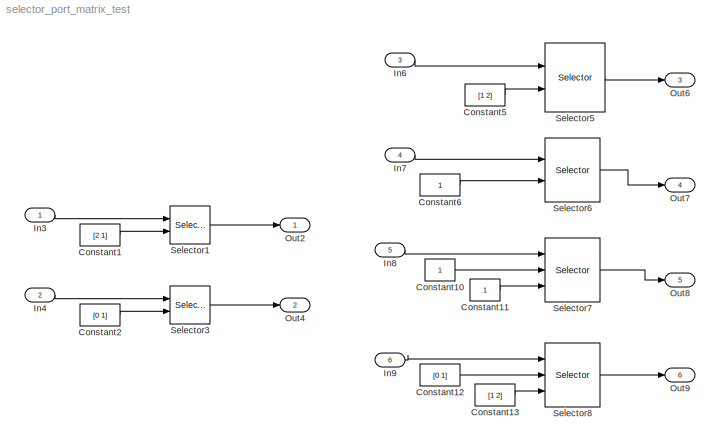
MODEL selector_port_matrix_test
KIND model
BLOCK [Constant] Constant1
  SID = 60
  Value = [2 1]
BLOCK [Constant] Constant10
  SID = 67
BLOCK [Constant] Constant11
  SID = 68
BLOCK [Constant] Constant12
  SID = 69
  Value = [0 1]
BLOCK [Constant] Constant13
  SID = 70
  Value = [1 2]
BLOCK [Constant] Constant2
  SID = 61
  Value = [0 1]
BLOCK [Constant] Constant5
  SID = 64
  Value = [1 2]
BLOCK [Constant] Constant6
  SID = 65
BLOCK [Inport] In3
  IconDisplay = Port number
  PortDimensions = [2 3]
  SID = 53
BLOCK [Inport] In4
  IconDisplay = Port number
  Port = 2
  PortDimensions = [2 3]
  SID = 54
BLOCK [Inport] In6
  IconDisplay = Port number
  Port = 3
  PortDimensions = 3
  SID = 56
BLOCK [Inport] In7
  IconDisplay = Port number
  Port = 4
  PortDimensions = [2 3]
  SID = 57
BLOCK [Inport] In8
  IconDisplay = Port number
  Port = 5
  PortDimensions = [2 3]
  SID = 58
BLOCK [Inport] In9
  IconDisplay = Port number
  Port = 6
  PortDimensions = [2 3]
  SID = 59
BLOCK [Outport] Out2
  IconDisplay = Port number
  SID = 6
BLOCK [Outport] Out4
  IconDisplay = Port number
  Port = 2
  SID = 21
BLOCK [Outport] Out6
  IconDisplay = Port number
  Port = 3
  SID = 39
BLOCK [Outport] Out7
  IconDisplay = Port number
  Port = 4
  SID = 40
BLOCK [Outport] Out8
  IconDisplay = Port number
  Port = 5
  SID = 41
BLOCK [Outport] Out9
  IconDisplay = Port number
  Port = 6
  SID = 50
BLOCK [Selector] Selector1
  IndexOptions = Index vector (port),Index vector (dialog)
  Indices = [2 1],1
  InputPortWidth = 3
  NumberOfDimensions = 2
  OutputSizes = 1,2
  Ports = [2, 1]
  SID = 10
BLOCK [Selector] Selector3
  IndexMode = Zero-based
  IndexOptions = Index vector (port),Index vector (dialog)
  Indices = [1 0],1
  InputPortWidth = 3
  NumberOfDimensions = 2
  OutputSizes = 1,2
  Ports = [2, 1]
  SID = 20
BLOCK [Selector] Selector5
  IndexOptions = Select all,Index vector (port)
  Indices = [2 1],1
  InputPortWidth = 3
  NumberOfDimensions = 2
  OutputSizes = 1,2
  Ports = [2, 1]
  SID = 36
BLOCK [Selector] Selector6
  IndexMode = Zero-based
  IndexOptions = Index vector (port),Select all
  Indices = [1 0],1
  InputPortWidth = 3
  NumberOfDimensions = 2
  OutputSizes = 1,2
  Ports = [2, 1]
  SID = 37
BLOCK [Selector] Selector7
  IndexOptions = Index vector (port),Index vector (port)
  Indices = 0,1
  InputPortWidth = 3
  NumberOfDimensions = 2
  OutputSizes = 1,2
  Ports = [3, 1]
  SID = 38
BLOCK [Selector] Selector8
  IndexMode = Zero-based
  IndexOptions = Index vector (port),Index vector (port)
  Indices = 0,1
  InputPortWidth = 3
  NumberOfDimensions = 2
  OutputSizes = 1,2
  Ports = [3, 1]
  SID = 49
LINE Constant10:1 -> Selector7:2
LINE Constant11:1 -> Selector7:3
LINE Constant12:1 -> Selector8:2
LINE Constant13:1 -> Selector8:3
LINE Constant1:1 -> Selector1:2
LINE Constant2:1 -> Selector3:2
LINE Constant5:1 -> Selector5:2
LINE Constant6:1 -> Selector6:2
LINE In3:1 -> Selector1:1
LINE In4:1 -> Selector3:1
LINE In6:1 -> Selector5:1
LINE In7:1 -> Selector6:1
LINE In8:1 -> Selector7:1
LINE In9:1 -> Selector8:1
LINE Selector1:1 -> Out2:1
LINE Selector3:1 -> Out4:1
LINE Selector5:1 -> Out6:1
LINE Selector6:1 -> Out7:1
LINE Selector7:1 -> Out8:1
LINE Selector8:1 -> Out9:1
